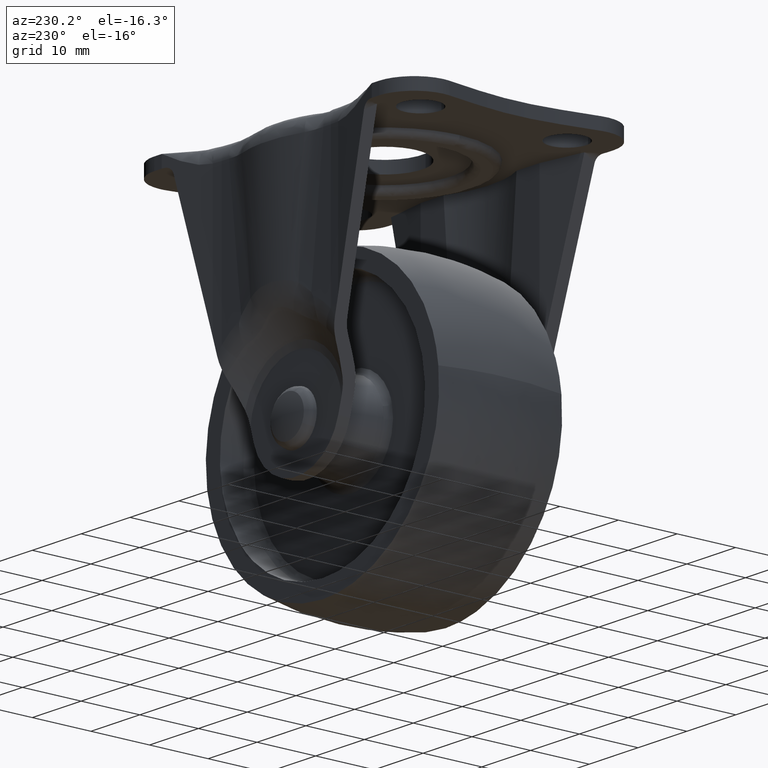
[diagram: clean part render]
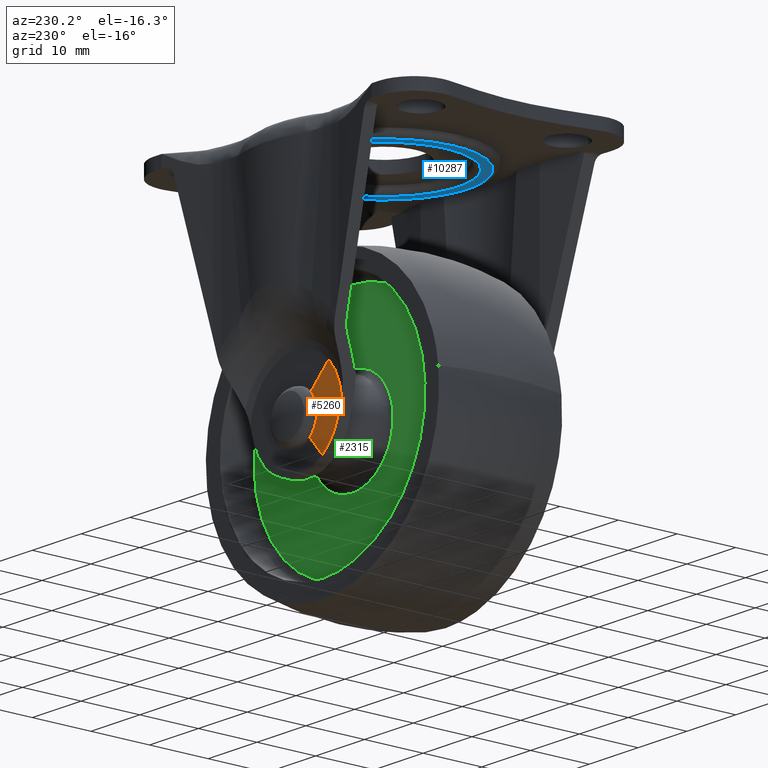
[diagram: same view with three faces highlighted in distinct colors, each labeled with its STEP entity id]
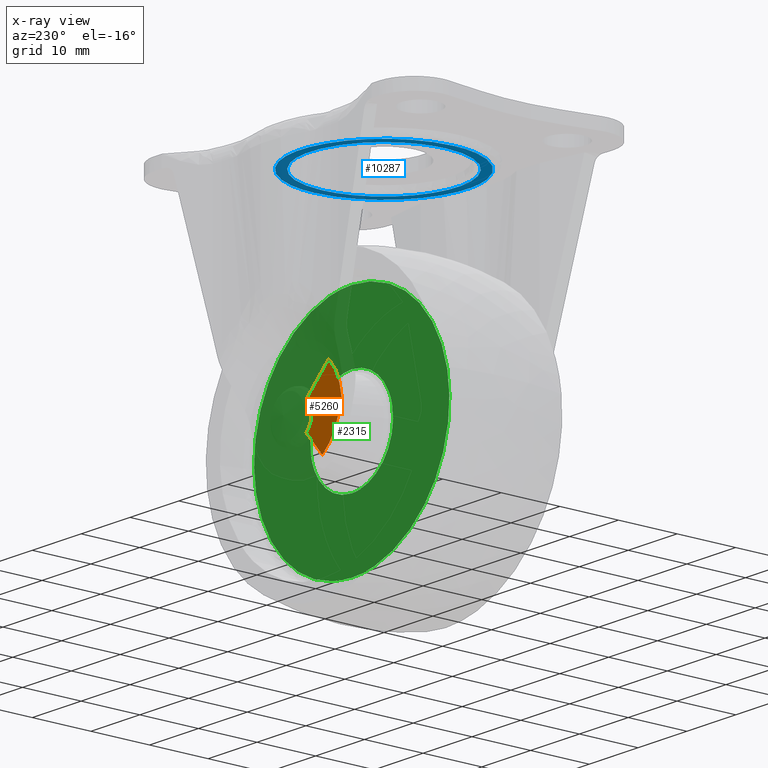
[diagram: x-ray of the same camera — body ghosted, the three highlighted faces saturated]
A machine part, auxiliary view with three faces highlighted in distinct colors.
The next image is the same camera in x-ray (body ghosted, the three faces saturated) — at least one of them is partly hidden behind the body in this view.
Their STEP definitions:

[orange] entity #5260 — the highlighted face is a freeform B-spline surface patch.
#2756=CARTESIAN_POINT('',(-2.133183374022796,15.009215350878209,-2.451943860047233));
#2757=VERTEX_POINT('',#2756);
#2771=CARTESIAN_POINT('',(-2.325928817787238,15.009215350878200,2.269924037184290));
#2772=VERTEX_POINT('',#2771);
#2773=CARTESIAN_POINT('',(-2.133183374022796,15.009215350878206,-2.451943860047234));
#2774=CARTESIAN_POINT('',(-3.250000000000001,15.009215350878204,-1.480316940878649));
#2775=CARTESIAN_POINT('',(-3.250000000000000,15.009215350878200,1.224606E-015));
#2776=CARTESIAN_POINT('',(-3.250000000000000,15.009215350878202,1.323053676245639));
#2777=CARTESIAN_POINT('',(-2.325928817787237,15.009215350878202,2.269924037184290));
#2785=(BOUNDED_CURVE()B_SPLINE_CURVE(2,(#2773,#2774,#2775,#2776,#2777),.UNSPECIFIED.,.F.,.U.)B_SPLINE_CURVE_WITH_KNOTS((3,2,3),(0.614522805846586,0.750000000000000,0.873161352119520),.UNSPECIFIED.)CURVE()GEOMETRIC_REPRESENTATION_ITEM()RATIONAL_B_SPLINE_CURVE((0.854582234000499,0.841278594114366,1.0,0.855707500577187,0.853585075791324))REPRESENTATION_ITEM(''));
#2786=EDGE_CURVE('',#2757,#2772,#2785,.T.);
#5096=CARTESIAN_POINT('',(-6.701465037248013,15.018826592510671,6.540104089342501));
#5097=VERTEX_POINT('',#5096);
#5098=CARTESIAN_POINT('',(-2.325928817787238,15.009215350878200,2.269924037184290));
#5099=CARTESIAN_POINT('',(-6.701465037248013,15.018826592510671,6.540104089342501));
#5100=QUASI_UNIFORM_CURVE('',1,(#5098,#5099),.UNSPECIFIED.,.F.,.U.);
#5101=EDGE_CURVE('',#2772,#5097,#5100,.T.);
#5129=CARTESIAN_POINT('',(-5.396357728462618,15.017030850577621,-6.202732722678091));
#5130=VERTEX_POINT('',#5129);
#5182=CARTESIAN_POINT('',(-2.133183374022796,15.009215350878209,-2.451943860047233));
#5183=CARTESIAN_POINT('',(-5.396357728462618,15.017030850577621,-6.202732722678091));
#5184=QUASI_UNIFORM_CURVE('',1,(#5182,#5183),.UNSPECIFIED.,.F.,.U.);
#5185=EDGE_CURVE('',#2757,#5130,#5184,.T.);
#5194=CARTESIAN_POINT('',(-2.032859784368213,15.008975069837380,-2.336628968708413));
#5195=CARTESIAN_POINT('',(-4.369488753076626,15.008975069837382,-0.303769184340200));
#5196=CARTESIAN_POINT('',(-2.336628968708414,15.008975069837380,2.032859784368214));
#5197=CARTESIAN_POINT('',(-2.278449395055430,15.008975069837382,2.099733101568946));
#5198=CARTESIAN_POINT('',(-2.216540412299069,15.008975069837376,2.163169535878776));
#5199=CARTESIAN_POINT('',(-6.248958632351346,15.019072880577790,-7.182737283157298));
#5200=CARTESIAN_POINT('',(-13.431695915508644,15.019072880577790,-0.933778650805952));
#5201=CARTESIAN_POINT('',(-7.182737283157299,15.019072880577790,6.248958632351347));
#5202=CARTESIAN_POINT('',(-7.003894771833615,15.019072880577790,6.454525487482657));
#5203=CARTESIAN_POINT('',(-6.813588152955970,15.019072880577784,6.649527453104798));
#5211=(BOUNDED_SURFACE()B_SPLINE_SURFACE(2,1,((#5194,#5199),(#5195,#5200),(#5196,#5201),(#5197,#5202),(#5198,#5203)),.UNSPECIFIED.,.F.,.F.,.U.)B_SPLINE_SURFACE_WITH_KNOTS((3,2,3),(2,2),(0.0,15.774192140928440,16.405159826565569),(0.0,6.423422550098747),.UNSPECIFIED.)GEOMETRIC_REPRESENTATION_ITEM()RATIONAL_B_SPLINE_SURFACE(((1.0,1.0),(0.707106781186548,0.707106781186548),(1.0,1.0),(0.988284271247462,0.988284271247462),(0.977505800795127,0.977505800795127)))REPRESENTATION_ITEM('')SURFACE());
#5212=ORIENTED_EDGE('',*,*,#2786,.F.);
#5213=ORIENTED_EDGE('',*,*,#5185,.T.);
#5214=CARTESIAN_POINT('',(-8.661301000000000,15.017910483766650,-1.445805000000080));
#5215=VERTEX_POINT('',#5214);
#5216=CARTESIAN_POINT('',(-8.661301000000000,15.017910483766650,-1.445805000000080));
#5217=CARTESIAN_POINT('',(-8.528064655495491,15.017826015156921,-1.917632460781233));
#5218=CARTESIAN_POINT('',(-8.358376859502341,15.017743875000260,-2.372126234333065));
#5219=CARTESIAN_POINT('',(-7.949153561304432,15.017584240504650,-3.247899238737054));
#5220=CARTESIAN_POINT('',(-7.709614944963818,15.017506745078551,-3.669176988730065));
#5221=CARTESIAN_POINT('',(-7.364927904755851,15.017413076572421,-4.174249984615044));
#5222=CARTESIAN_POINT('',(-7.293697673958609,15.017394504890090,-4.274176664321264));
#5223=CARTESIAN_POINT('',(-7.147991611588484,15.017358031640700,-4.470025493405753));
#5224=CARTESIAN_POINT('',(-7.073358671996749,15.017340086167939,-4.566184711965668));
#5225=CARTESIAN_POINT('',(-6.844198809649390,15.017287119272741,-4.849444810978676));
#5226=CARTESIAN_POINT('',(-6.684419375856104,15.017252965877759,-5.031336596770996));
#5227=CARTESIAN_POINT('',(-6.184369633455144,15.017154003499520,-5.556471710445115));
#5228=CARTESIAN_POINT('',(-5.823525487430547,15.017092666987841,-5.879311260819385));
#5229=CARTESIAN_POINT('',(-5.421741519147033,15.017034496810499,-6.183663012089363));
#5230=CARTESIAN_POINT('',(-5.409065610838422,15.017032671313670,-6.193212135681058));
#5231=CARTESIAN_POINT('',(-5.396357728462618,15.017030850577621,-6.202732722678091));
#5232=B_SPLINE_CURVE_WITH_KNOTS('',3,(#5216,#5217,#5218,#5219,#5220,#5221,#5222,#5223,#5224,#5225,#5226,#5227,#5228,#5229,#5230,#5231),.UNSPECIFIED.,.F.,.U.,(4,2,2,2,2,2,2,4),(0.0,0.062500000000000,0.125000000000000,0.140625000000000,0.156250000000000,0.187500000000000,0.250000000000000,0.252030408795029),.UNSPECIFIED.);
#5233=EDGE_CURVE('',#5215,#5130,#5232,.T.);
#5234=ORIENTED_EDGE('',*,*,#5233,.F.);
#5235=CARTESIAN_POINT('',(-9.321352170658470,15.018826592510949,0.891621475504158));
#5236=VERTEX_POINT('',#5235);
#5237=CARTESIAN_POINT('',(-8.661301000000004,15.017910483766640,-1.445805000000082));
#5238=CARTESIAN_POINT('',(-8.881318079741654,15.018049969327340,-0.666662760561034));
#5239=CARTESIAN_POINT('',(-9.101335135205433,15.018365662598191,0.112479392903270));
#5240=CARTESIAN_POINT('',(-9.321352170658470,15.018826592510949,0.891621475504158));
#5241=QUASI_UNIFORM_CURVE('',3,(#5237,#5238,#5239,#5240),.UNSPECIFIED.,.F.,.U.);
#5242=EDGE_CURVE('',#5215,#5236,#5241,.T.);
#5243=ORIENTED_EDGE('',*,*,#5242,.T.);
#5244=CARTESIAN_POINT('',(-9.321352170658470,15.018826592510949,0.891621475504158));
#5245=CARTESIAN_POINT('',(-9.007031141005200,15.018826592510399,4.177653824946184));
#5246=CARTESIAN_POINT('',(-6.701465037248013,15.018826592510669,6.540104089342501));
#5254=(BOUNDED_CURVE()B_SPLINE_CURVE(2,(#5244,#5245,#5246),.UNSPECIFIED.,.F.,.U.)B_SPLINE_CURVE_WITH_KNOTS((3,3),(0.0,0.230634896925099),.UNSPECIFIED.)CURVE()GEOMETRIC_REPRESENTATION_ITEM()RATIONAL_B_SPLINE_CURVE((1.0,0.880072927590616,0.870783327115900))REPRESENTATION_ITEM(''));
#5255=EDGE_CURVE('',#5236,#5097,#5254,.T.);
#5256=ORIENTED_EDGE('',*,*,#5255,.T.);
#5257=ORIENTED_EDGE('',*,*,#5101,.F.);
#5258=EDGE_LOOP('',(#5212,#5213,#5234,#5243,#5256,#5257));
#5259=FACE_OUTER_BOUND('',#5258,.T.);
#5260=ADVANCED_FACE('',(#5259),#5211,.F.);

[blue] entity #10287 — the highlighted face is a freeform B-spline surface patch.
#4330=CARTESIAN_POINT('',(14.300000000000001,0.0,36.799999999999997));
#4331=VERTEX_POINT('',#4330);
#4332=CARTESIAN_POINT('',(-5.052218127274045,-13.377783534677810,36.799999999999997));
#4333=VERTEX_POINT('',#4332);
#4334=CARTESIAN_POINT('',(14.300000000000001,0.0,36.799999999999997));
#4335=CARTESIAN_POINT('',(14.299999999999999,-14.299999999999999,36.799999999999997));
#4336=CARTESIAN_POINT('',(0.0,-14.300000000000001,36.799999999999997));
#4337=CARTESIAN_POINT('',(-2.610278352144483,-14.299999999999999,36.800000000000004));
#4338=CARTESIAN_POINT('',(-5.052218127274045,-13.377783534677816,36.799999999999997));
#4346=(BOUNDED_CURVE()B_SPLINE_CURVE(2,(#4334,#4335,#4336,#4337,#4338),.UNSPECIFIED.,.F.,.U.)B_SPLINE_CURVE_WITH_KNOTS((3,2,3),(0.0,0.250000000000000,0.310000000005934),.UNSPECIFIED.)CURVE()GEOMETRIC_REPRESENTATION_ITEM()RATIONAL_B_SPLINE_CURVE((1.0,0.707106781186548,1.0,0.929705627477819,0.893152553769622))REPRESENTATION_ITEM(''));
#4347=EDGE_CURVE('',#4331,#4333,#4346,.T.);
#4349=CARTESIAN_POINT('',(-14.300000000253339,1.317442E-016,36.799999999999997));
#4350=VERTEX_POINT('',#4349);
#4351=CARTESIAN_POINT('',(-14.300000000253339,1.317442E-016,36.799999999999997));
#4352=CARTESIAN_POINT('',(-14.299999999999999,14.299999999999999,36.799999999999997));
#4353=CARTESIAN_POINT('',(0.0,14.300000000000001,36.799999999999997));
#4354=CARTESIAN_POINT('',(14.299999999999999,14.299999999999999,36.799999999999997));
#4355=CARTESIAN_POINT('',(14.300000000000001,0.0,36.799999999999997));
#4363=(BOUNDED_CURVE()B_SPLINE_CURVE(2,(#4351,#4352,#4353,#4354,#4355),.UNSPECIFIED.,.F.,.U.)B_SPLINE_CURVE_WITH_KNOTS((3,2,3),(0.500000000000000,0.750000000000000,1.0),.UNSPECIFIED.)CURVE()GEOMETRIC_REPRESENTATION_ITEM()RATIONAL_B_SPLINE_CURVE((1.0,0.707106781186548,1.0,0.707106781186548,1.0))REPRESENTATION_ITEM(''));
#4364=EDGE_CURVE('',#4350,#4331,#4363,.T.);
#4448=CARTESIAN_POINT('',(-5.052218127274045,-13.377783534677812,36.799999999999997));
#4449=CARTESIAN_POINT('',(-14.300000000000002,-9.885290832195866,36.799999999999997));
#4450=CARTESIAN_POINT('',(-14.300000000253339,1.317442E-016,36.799999999999997));
#4458=(BOUNDED_CURVE()B_SPLINE_CURVE(2,(#4448,#4449,#4450),.UNSPECIFIED.,.F.,.U.)B_SPLINE_CURVE_WITH_KNOTS((3,3),(0.310000000005934,0.500000000000000),.UNSPECIFIED.)CURVE()GEOMETRIC_REPRESENTATION_ITEM()RATIONAL_B_SPLINE_CURVE((0.893152553769622,0.777401153708729,1.0))REPRESENTATION_ITEM(''));
#4459=EDGE_CURVE('',#4333,#4350,#4458,.T.);
#4514=CARTESIAN_POINT('',(0.885612294983963,12.669084057585369,36.799999999999997));
#4515=VERTEX_POINT('',#4514);
#4516=CARTESIAN_POINT('',(-12.699999999999999,0.0,36.799999999999997));
#4517=VERTEX_POINT('',#4516);
#4518=CARTESIAN_POINT('',(0.885612294983963,12.669084057585373,36.799999999999997));
#4519=CARTESIAN_POINT('',(0.443345771597850,12.699999999999996,36.799999999999997));
#4520=CARTESIAN_POINT('',(0.0,12.699999999999999,36.799999999999997));
#4521=CARTESIAN_POINT('',(-12.699999999999999,12.699999999999999,36.799999999999990));
#4522=CARTESIAN_POINT('',(-12.699999999999999,0.0,36.799999999999997));
#4530=(BOUNDED_CURVE()B_SPLINE_CURVE(2,(#4518,#4519,#4520,#4521,#4522),.UNSPECIFIED.,.F.,.U.)B_SPLINE_CURVE_WITH_KNOTS((3,2,3),(0.237833686535432,0.250000000000000,0.500000000000000),.UNSPECIFIED.)CURVE()GEOMETRIC_REPRESENTATION_ITEM()RATIONAL_B_SPLINE_CURVE((0.972879876387695,0.985746277153077,1.0,0.707106781186547,1.0))REPRESENTATION_ITEM(''));
#4531=EDGE_CURVE('',#4515,#4517,#4530,.T.);
#4582=CARTESIAN_POINT('',(12.698997261364971,-0.159588706559361,36.799999999999997));
#4583=VERTEX_POINT('',#4582);
#4597=CARTESIAN_POINT('',(-12.699999999999999,0.0,36.799999999999997));
#4598=CARTESIAN_POINT('',(-12.699999999999999,-12.699999999999999,36.799999999999990));
#4599=CARTESIAN_POINT('',(0.0,-12.699999999999999,36.799999999999997));
#4600=CARTESIAN_POINT('',(12.541401509741815,-12.699999999999999,36.799999999999997));
#4601=CARTESIAN_POINT('',(12.698997261364967,-0.159588706559361,36.800000000000004));
#4609=(BOUNDED_CURVE()B_SPLINE_CURVE(2,(#4597,#4598,#4599,#4600,#4601),.UNSPECIFIED.,.F.,.U.)B_SPLINE_CURVE_WITH_KNOTS((3,2,3),(0.500000000000000,0.750000000000000,0.997784295920591),.UNSPECIFIED.)CURVE()GEOMETRIC_REPRESENTATION_ITEM()RATIONAL_B_SPLINE_CURVE((1.0,0.707106781186547,1.0,0.709702639985572,0.994854295641396))REPRESENTATION_ITEM(''));
#4610=EDGE_CURVE('',#4517,#4583,#4609,.T.);
#4632=CARTESIAN_POINT('',(12.699999999999999,0.0,36.799999999999997));
#4633=VERTEX_POINT('',#4632);
#4634=CARTESIAN_POINT('',(12.699999999999999,0.0,36.799999999999997));
#4635=CARTESIAN_POINT('',(12.699999999999998,11.843217960306593,36.800000000000004));
#4636=CARTESIAN_POINT('',(0.885612294983963,12.669084057585371,36.799999999999997));
#4644=(BOUNDED_CURVE()B_SPLINE_CURVE(2,(#4634,#4635,#4636),.UNSPECIFIED.,.F.,.U.)B_SPLINE_CURVE_WITH_KNOTS((3,3),(0.0,0.237833686535432),.UNSPECIFIED.)CURVE()GEOMETRIC_REPRESENTATION_ITEM()RATIONAL_B_SPLINE_CURVE((1.0,0.721360504033471,0.972879876387696))REPRESENTATION_ITEM(''));
#4645=EDGE_CURVE('',#4633,#4515,#4644,.T.);
#4647=CARTESIAN_POINT('',(12.698997261364971,-0.159588706559361,36.800000000000011));
#4648=CARTESIAN_POINT('',(12.699999999999999,-0.079797503538076,36.799999999999997));
#4649=CARTESIAN_POINT('',(12.699999999999999,0.0,36.799999999999997));
#4657=(BOUNDED_CURVE()B_SPLINE_CURVE(2,(#4647,#4648,#4649),.UNSPECIFIED.,.F.,.U.)B_SPLINE_CURVE_WITH_KNOTS((3,3),(0.997784295920591,1.0),.UNSPECIFIED.)CURVE()GEOMETRIC_REPRESENTATION_ITEM()RATIONAL_B_SPLINE_CURVE((0.994854295641394,0.997404141200975,1.0))REPRESENTATION_ITEM(''));
#4658=EDGE_CURVE('',#4583,#4633,#4657,.T.);
#10271=CARTESIAN_POINT('',(-15.728570213309981,-15.723773882497181,36.799999999999997));
#10272=CARTESIAN_POINT('',(15.728570724464500,-15.723773882497181,36.799999999999997));
#10273=CARTESIAN_POINT('',(-15.728570213309981,15.728342545175950,36.799999999999997));
#10274=CARTESIAN_POINT('',(15.728570724464500,15.728342545175950,36.799999999999997));
#10275=B_SPLINE_SURFACE_WITH_KNOTS('',1,1,((#10271,#10273),(#10272,#10274)),.UNSPECIFIED.,.F.,.F.,.U.,(2,2),(2,2),(0.0,31.457140937774479),(0.0,31.452116427673129),.UNSPECIFIED.);
#10276=ORIENTED_EDGE('',*,*,#4347,.T.);
#10277=ORIENTED_EDGE('',*,*,#4459,.T.);
#10278=ORIENTED_EDGE('',*,*,#4364,.T.);
#10279=EDGE_LOOP('',(#10276,#10277,#10278));
#10280=FACE_OUTER_BOUND('',#10279,.T.);
#10281=ORIENTED_EDGE('',*,*,#4610,.T.);
#10282=ORIENTED_EDGE('',*,*,#4658,.T.);
#10283=ORIENTED_EDGE('',*,*,#4645,.T.);
#10284=ORIENTED_EDGE('',*,*,#4531,.T.);
#10285=EDGE_LOOP('',(#10281,#10282,#10283,#10284));
#10286=FACE_BOUND('',#10285,.T.);
#10287=ADVANCED_FACE('',(#10280,#10286),#10275,.F.);

[green] entity #2315 — the highlighted face is a freeform B-spline surface patch.
#1172=CARTESIAN_POINT('',(-19.993683803052090,5.500000000000000,0.502601909728324));
#1173=VERTEX_POINT('',#1172);
#1187=CARTESIAN_POINT('',(0.0,5.500000000000000,-20.0));
#1188=VERTEX_POINT('',#1187);
#1189=CARTESIAN_POINT('',(-19.993683803052093,5.500000000000000,0.502601909728324));
#1190=CARTESIAN_POINT('',(-20.0,5.500000000000000,0.251340642892046));
#1191=CARTESIAN_POINT('',(-20.0,5.500000000000000,1.224606E-015));
#1192=CARTESIAN_POINT('',(-19.999999999999996,5.500000000000001,-19.999999999999996));
#1193=CARTESIAN_POINT('',(0.0,5.500000000000000,-20.0));
#1201=(BOUNDED_CURVE()B_SPLINE_CURVE(2,(#1189,#1190,#1191,#1192,#1193),.UNSPECIFIED.,.F.,.U.)B_SPLINE_CURVE_WITH_KNOTS((3,2,3),(0.745579891762382,0.750000000000000,1.0),.UNSPECIFIED.)CURVE()GEOMETRIC_REPRESENTATION_ITEM()RATIONAL_B_SPLINE_CURVE((0.989826157664792,0.994821521083121,1.0,0.707106781186548,1.0))REPRESENTATION_ITEM(''));
#1202=EDGE_CURVE('',#1173,#1188,#1201,.T.);
#1204=CARTESIAN_POINT('',(19.993683803052090,5.500000000000002,-0.502601909728323));
#1205=VERTEX_POINT('',#1204);
#1206=CARTESIAN_POINT('',(0.0,5.500000000000000,-20.0));
#1207=CARTESIAN_POINT('',(19.503557522785023,5.499999999999999,-20.000000000000004));
#1208=CARTESIAN_POINT('',(19.993683803052097,5.500000000000002,-0.502601909728323));
#1216=(BOUNDED_CURVE()B_SPLINE_CURVE(2,(#1206,#1207,#1208),.UNSPECIFIED.,.F.,.U.)B_SPLINE_CURVE_WITH_KNOTS((3,3),(0.0,0.245579891762382),.UNSPECIFIED.)CURVE()GEOMETRIC_REPRESENTATION_ITEM()RATIONAL_B_SPLINE_CURVE((1.0,0.712285260103427,0.989826157664792))REPRESENTATION_ITEM(''));
#1217=EDGE_CURVE('',#1188,#1205,#1216,.T.);
#1263=CARTESIAN_POINT('',(0.0,5.500000000000000,20.0));
#1264=VERTEX_POINT('',#1263);
#1265=CARTESIAN_POINT('',(19.993683803052093,5.500000000000002,-0.502601909728323));
#1266=CARTESIAN_POINT('',(20.0,5.500000000000000,-0.251340642892045));
#1267=CARTESIAN_POINT('',(20.0,5.500000000000000,1.224606E-015));
#1268=CARTESIAN_POINT('',(19.999999999999996,5.500000000000001,19.999999999999996));
#1269=CARTESIAN_POINT('',(0.0,5.500000000000000,20.0));
#1277=(BOUNDED_CURVE()B_SPLINE_CURVE(2,(#1265,#1266,#1267,#1268,#1269),.UNSPECIFIED.,.F.,.U.)B_SPLINE_CURVE_WITH_KNOTS((3,2,3),(0.245579891762382,0.250000000000000,0.500000000000000),.UNSPECIFIED.)CURVE()GEOMETRIC_REPRESENTATION_ITEM()RATIONAL_B_SPLINE_CURVE((0.989826157664792,0.994821521083121,1.0,0.707106781186548,1.0))REPRESENTATION_ITEM(''));
#1278=EDGE_CURVE('',#1205,#1264,#1277,.T.);
#1280=CARTESIAN_POINT('',(0.0,5.500000000000000,20.0));
#1281=CARTESIAN_POINT('',(-19.503557522785041,5.500000000000000,20.000000000000004));
#1282=CARTESIAN_POINT('',(-19.993683803052090,5.500000000000000,0.502601909728324));
#1290=(BOUNDED_CURVE()B_SPLINE_CURVE(2,(#1280,#1281,#1282),.UNSPECIFIED.,.F.,.U.)B_SPLINE_CURVE_WITH_KNOTS((3,3),(0.500000000000000,0.745579891762382),.UNSPECIFIED.)CURVE()GEOMETRIC_REPRESENTATION_ITEM()RATIONAL_B_SPLINE_CURVE((1.0,0.712285260103427,0.989826157664792))REPRESENTATION_ITEM(''));
#1291=EDGE_CURVE('',#1264,#1173,#1290,.T.);
#1321=CARTESIAN_POINT('',(8.345211425558599,5.499999999999999,-1.423675069942088));
#1322=VERTEX_POINT('',#1321);
#1323=CARTESIAN_POINT('',(0.0,5.500000000000000,8.465778433459011));
#1324=VERTEX_POINT('',#1323);
#1325=CARTESIAN_POINT('',(8.345211425558599,5.499999999999999,-1.423675069942088));
#1326=CARTESIAN_POINT('',(8.465778433459009,5.500000000000000,-0.716942774281538));
#1327=CARTESIAN_POINT('',(8.465778433459009,5.500000000000000,1.224606E-015));
#1328=CARTESIAN_POINT('',(8.465778433459009,5.500000000000000,8.465778433459011));
#1329=CARTESIAN_POINT('',(0.0,5.500000000000000,8.465778433459011));
#1337=(BOUNDED_CURVE()B_SPLINE_CURVE(2,(#1325,#1326,#1327,#1328,#1329),.UNSPECIFIED.,.F.,.U.)B_SPLINE_CURVE_WITH_KNOTS((3,2,3),(0.221073273956412,0.250000000000000,0.500000000000000),.UNSPECIFIED.)CURVE()GEOMETRIC_REPRESENTATION_ITEM()RATIONAL_B_SPLINE_CURVE((0.940063024979831,0.966110232397434,1.0,0.707106781186547,1.0))REPRESENTATION_ITEM(''));
#1338=EDGE_CURVE('',#1322,#1324,#1337,.T.);
#1356=CARTESIAN_POINT('',(-8.250128574859717,5.500000000000000,1.898626570297845));
#1357=VERTEX_POINT('',#1356);
#1371=CARTESIAN_POINT('',(0.0,5.500000000000000,8.465778433459011));
#1372=CARTESIAN_POINT('',(-6.738810436516089,5.500000000000001,8.465778433459015));
#1373=CARTESIAN_POINT('',(-8.250128574859717,5.500000000000000,1.898626570297846));
#1381=(BOUNDED_CURVE()B_SPLINE_CURVE(2,(#1371,#1372,#1373),.UNSPECIFIED.,.F.,.U.)B_SPLINE_CURVE_WITH_KNOTS((3,3),(0.500000000000000,0.711647087590014),.UNSPECIFIED.)CURVE()GEOMETRIC_REPRESENTATION_ITEM()RATIONAL_B_SPLINE_CURVE((1.0,0.752040013053072,0.923920098715546))REPRESENTATION_ITEM(''));
#1382=EDGE_CURVE('',#1324,#1357,#1381,.T.);
#1416=CARTESIAN_POINT('',(0.0,5.500000000000000,-8.465778433459008));
#1417=VERTEX_POINT('',#1416);
#1418=CARTESIAN_POINT('',(0.0,5.500000000000000,-8.465778433459008));
#1419=CARTESIAN_POINT('',(7.143843782667111,5.500000000000000,-8.465778433459008));
#1420=CARTESIAN_POINT('',(8.345211425558599,5.499999999999999,-1.423675069942088));
#1428=(BOUNDED_CURVE()B_SPLINE_CURVE(2,(#1418,#1419,#1420),.UNSPECIFIED.,.F.,.U.)B_SPLINE_CURVE_WITH_KNOTS((3,3),(0.0,0.221073273956412),.UNSPECIFIED.)CURVE()GEOMETRIC_REPRESENTATION_ITEM()RATIONAL_B_SPLINE_CURVE((1.0,0.740996548789113,0.940063024979831))REPRESENTATION_ITEM(''));
#1429=EDGE_CURVE('',#1417,#1322,#1428,.T.);
#1431=CARTESIAN_POINT('',(-8.250128574859717,5.500000000000000,1.898626570297845));
#1432=CARTESIAN_POINT('',(-8.465778433459009,5.500000000000000,0.961560259788681));
#1433=CARTESIAN_POINT('',(-8.465778433459009,5.500000000000000,1.224606E-015));
#1434=CARTESIAN_POINT('',(-8.465778433459009,5.500000000000000,-8.465778433459008));
#1435=CARTESIAN_POINT('',(0.0,5.500000000000000,-8.465778433459008));
#1443=(BOUNDED_CURVE()B_SPLINE_CURVE(2,(#1431,#1432,#1433,#1434,#1435),.UNSPECIFIED.,.F.,.U.)B_SPLINE_CURVE_WITH_KNOTS((3,2,3),(0.711647087590014,0.750000000000000,1.0),.UNSPECIFIED.)CURVE()GEOMETRIC_REPRESENTATION_ITEM()RATIONAL_B_SPLINE_CURVE((0.923920098715546,0.955066768133476,1.0,0.707106781186547,1.0))REPRESENTATION_ITEM(''));
#1444=EDGE_CURVE('',#1357,#1417,#1443,.T.);
#2298=CARTESIAN_POINT('',(-21.991051843865161,5.500000000000000,21.997999922472239));
#2299=CARTESIAN_POINT('',(-21.991051843865161,5.500000000000000,-21.998000995355849));
#2300=CARTESIAN_POINT('',(21.991050771320381,5.500000000000000,21.997999922472239));
#2301=CARTESIAN_POINT('',(21.991050771320381,5.500000000000000,-21.998000995355849));
#2302=B_SPLINE_SURFACE_WITH_KNOTS('',1,1,((#2298,#2300),(#2299,#2301)),.UNSPECIFIED.,.F.,.F.,.U.,(2,2),(2,2),(0.0,43.996000917828077),(0.0,43.982102615185539),.UNSPECIFIED.);
#2303=ORIENTED_EDGE('',*,*,#1202,.F.);
#2304=ORIENTED_EDGE('',*,*,#1291,.F.);
#2305=ORIENTED_EDGE('',*,*,#1278,.F.);
#2306=ORIENTED_EDGE('',*,*,#1217,.F.);
#2307=EDGE_LOOP('',(#2303,#2304,#2305,#2306));
#2308=FACE_OUTER_BOUND('',#2307,.T.);
#2309=ORIENTED_EDGE('',*,*,#1382,.T.);
#2310=ORIENTED_EDGE('',*,*,#1444,.T.);
#2311=ORIENTED_EDGE('',*,*,#1429,.T.);
#2312=ORIENTED_EDGE('',*,*,#1338,.T.);
#2313=EDGE_LOOP('',(#2309,#2310,#2311,#2312));
#2314=FACE_BOUND('',#2313,.T.);
#2315=ADVANCED_FACE('',(#2308,#2314),#2302,.F.);